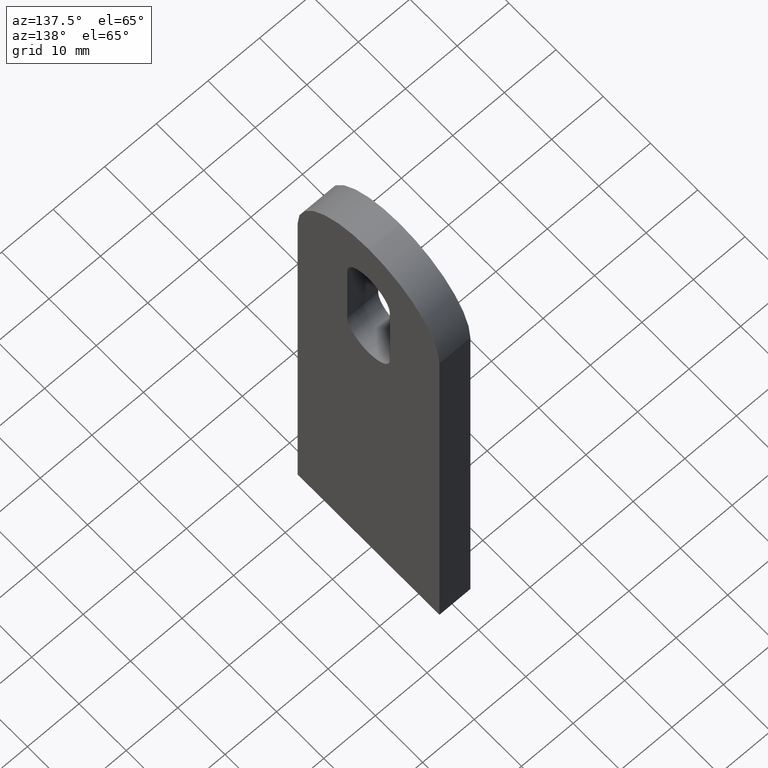
[diagram: clean part render]
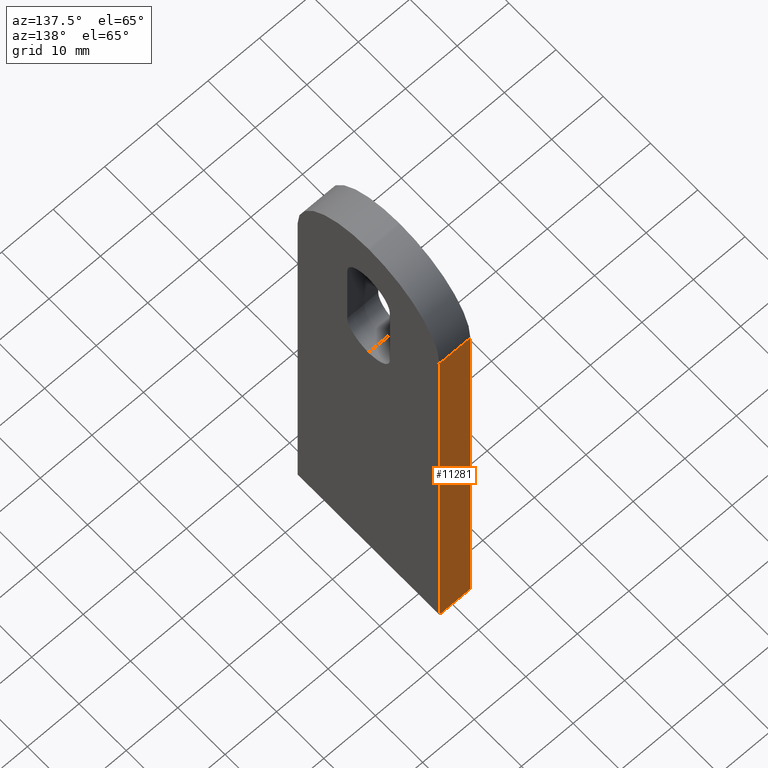
[diagram: same view with one face highlighted and labeled with its STEP entity id]
A machine part, auxiliary view. The second image highlights one B-rep face of the part: STEP entity #11281.
In plain terms, the highlighted planar face has unit normal (0, 1, -0).
Its self-contained STEP definition (entity closure, byte-faithful):
#307 = EDGE_CURVE ( 'NONE', #5444, #10231, #366, .T. ) ;
#366 = LINE ( 'NONE', #4333, #10526 ) ;
#766 = LINE ( 'NONE', #6362, #6814 ) ;
#1104 = CARTESIAN_POINT ( 'NONE',  ( 3.000000000000000000, 15.00000000000000000, -3.061616997868383000E-015 ) ) ;
#1896 = EDGE_CURVE ( 'NONE', #5444, #4095, #10503, .T. ) ;
#2508 = VERTEX_POINT ( 'NONE', #4107 ) ;
#2550 = EDGE_CURVE ( 'NONE', #10231, #2508, #4519, .T. ) ;
#2762 = EDGE_CURVE ( 'NONE', #4095, #2508, #766, .T. ) ;
#4095 = VERTEX_POINT ( 'NONE', #1104 ) ;
#4107 = CARTESIAN_POINT ( 'NONE',  ( -3.000000000000000000, 15.00000000000000000, -3.061616997868383000E-015 ) ) ;
#4333 = CARTESIAN_POINT ( 'NONE',  ( 3.000000000000000000, 15.00000000000000200, 84.99999999999998600 ) ) ;
#4417 = DIRECTION ( 'NONE',  ( -1.000000000000000000, -0.0000000000000000000, -0.0000000000000000000 ) ) ;
#4465 = AXIS2_PLACEMENT_3D ( 'NONE', #12247, #9333, #11292 ) ;
#4519 = LINE ( 'NONE', #11055, #8514 ) ;
#4722 = CARTESIAN_POINT ( 'NONE',  ( 3.000000000000000000, 15.00000000000000200, 84.99999999999998600 ) ) ;
#5267 = DIRECTION ( 'NONE',  ( 0.0000000000000000000, -2.040851148208008500E-017, -1.000000000000000000 ) ) ;
#5444 = VERTEX_POINT ( 'NONE', #4722 ) ;
#6292 = PLANE ( 'NONE',  #4465 ) ;
#6362 = CARTESIAN_POINT ( 'NONE',  ( 3.000000000000000000, 15.00000000000000000, -3.061616997868383000E-015 ) ) ;
#6814 = VECTOR ( 'NONE', #4417, 1000.000000000000000 ) ;
#7786 = ORIENTED_EDGE ( 'NONE', *, *, #2762, .T. ) ;
#8514 = VECTOR ( 'NONE', #10969, 1000.000000000000000 ) ;
#8660 = VECTOR ( 'NONE', #5267, 1000.000000000000000 ) ;
#9033 = CARTESIAN_POINT ( 'NONE',  ( 3.000000000000000000, 15.00000000000000200, 84.99999999999998600 ) ) ;
#9333 = DIRECTION ( 'NONE',  ( 0.0000000000000000000, 1.000000000000000000, -2.040851148208008500E-017 ) ) ;
#10124 = FACE_OUTER_BOUND ( 'NONE', #12219, .T. ) ;
#10231 = VERTEX_POINT ( 'NONE', #11303 ) ;
#10503 = LINE ( 'NONE', #9033, #8660 ) ;
#10526 = VECTOR ( 'NONE', #12178, 1000.000000000000000 ) ;
#10969 = DIRECTION ( 'NONE',  ( 0.0000000000000000000, -2.040851148208008500E-017, -1.000000000000000000 ) ) ;
#10994 = ORIENTED_EDGE ( 'NONE', *, *, #2550, .F. ) ;
#11055 = CARTESIAN_POINT ( 'NONE',  ( -3.000000000000000000, 15.00000000000000200, 84.99999999999998600 ) ) ;
#11281 = ADVANCED_FACE ( 'NONE', ( #10124 ), #6292, .T. ) ;
#11292 = DIRECTION ( 'NONE',  ( 0.0000000000000000000, 2.040851148208008500E-017, 1.000000000000000000 ) ) ;
#11303 = CARTESIAN_POINT ( 'NONE',  ( -3.000000000000000000, 15.00000000000000200, 84.99999999999998600 ) ) ;
#11462 = ORIENTED_EDGE ( 'NONE', *, *, #1896, .T. ) ;
#12178 = DIRECTION ( 'NONE',  ( -1.000000000000000000, -0.0000000000000000000, -0.0000000000000000000 ) ) ;
#12219 = EDGE_LOOP ( 'NONE', ( #10994, #12263, #11462, #7786 ) ) ;
#12247 = CARTESIAN_POINT ( 'NONE',  ( 3.000000000000000000, 15.00000000000000200, 84.99999999999998600 ) ) ;
#12263 = ORIENTED_EDGE ( 'NONE', *, *, #307, .F. ) ;